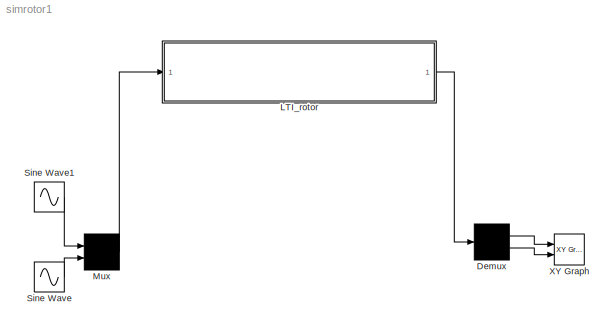
MODEL simrotor1
KIND model
BLOCK [Demux] Demux
  Outputs = 2
  Ports = [1, 2]
  SID = 1
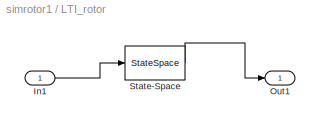
BLOCK [SubSystem] LTI_rotor
  Description = Rotor Linear Model
  Ports = [1, 1]
  RequestExecContextInheritance = off
  SID = 2
BLOCK [Inport] LTI_rotor/In1
  IconDisplay = Port number
  SID = 3
BLOCK [Outport] LTI_rotor/Out1
  IconDisplay = Port number
  SID = 5
BLOCK [StateSpace] LTI_rotor/State-Space
  A = full(ar)
  B = full(br)
  C = full(cr)
  D = full(dr)
  InitialCondition = 0
  Ports = [1, 1]
  SID = 4
BLOCK [Mux] Mux
  Inputs = 2
  Ports = [2, 1]
  SID = 6
BLOCK [Sin] Sine Wave
  Amplitude = 1000
  Ports = [0, 1]
  SID = 7
  SampleTime = 0
BLOCK [Sin] Sine Wave1
  Amplitude = 1000
  Phase = pi/2
  Ports = [0, 1]
  SID = 8
  SampleTime = 0
BLOCK [Reference] XY Graph  REF=simulink3/Sinks/XY Graph
  Ports = [2]
  SID = 9
  SourceBlock = simulink3/Sinks/XY Graph
  SourceProductBaseCode = SL
  SourceProductName = Simulink
  SourceType = XY scope.
  st = -1
  xmax = 1
  xmin = -1
  ymax = 1
  ymin = -1
LINE Demux:1 -> XY Graph:1
LINE Demux:2 -> XY Graph:2
LINE LTI_rotor/In1:1 -> LTI_rotor/State-Space:1
LINE LTI_rotor/State-Space:1 -> LTI_rotor/Out1:1
LINE LTI_rotor:1 -> Demux:1
LINE Mux:1 -> LTI_rotor:1
LINE Sine Wave1:1 -> Mux:1
LINE Sine Wave:1 -> Mux:2
